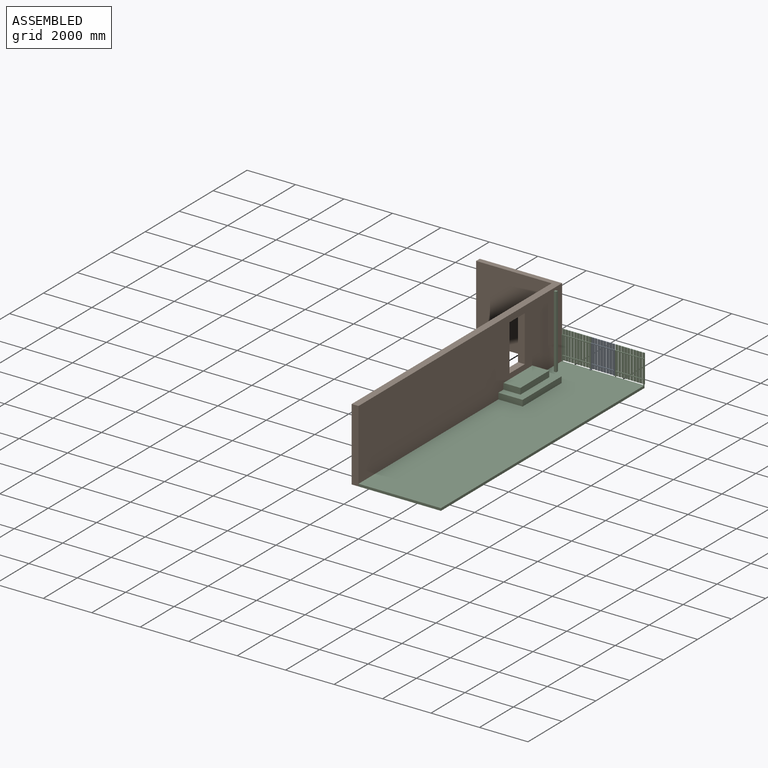
[diagram: assembled view]
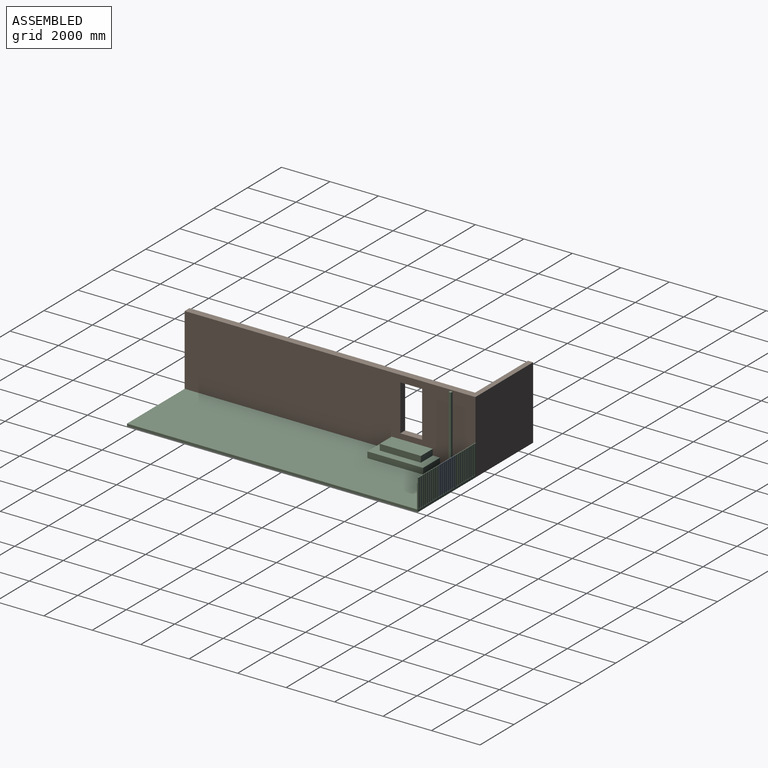
[diagram: assembled view, second angle]
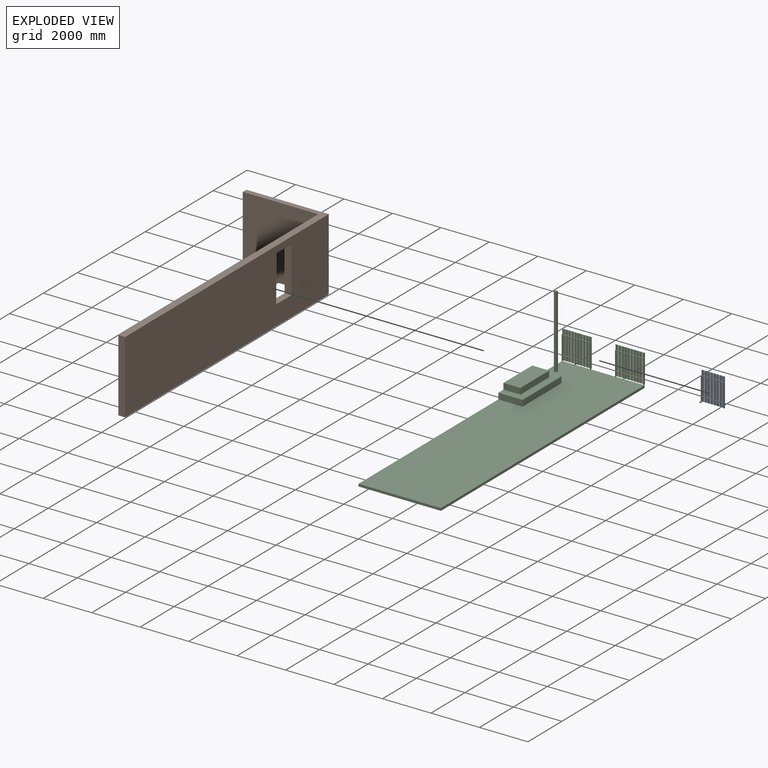
[diagram: exploded view]
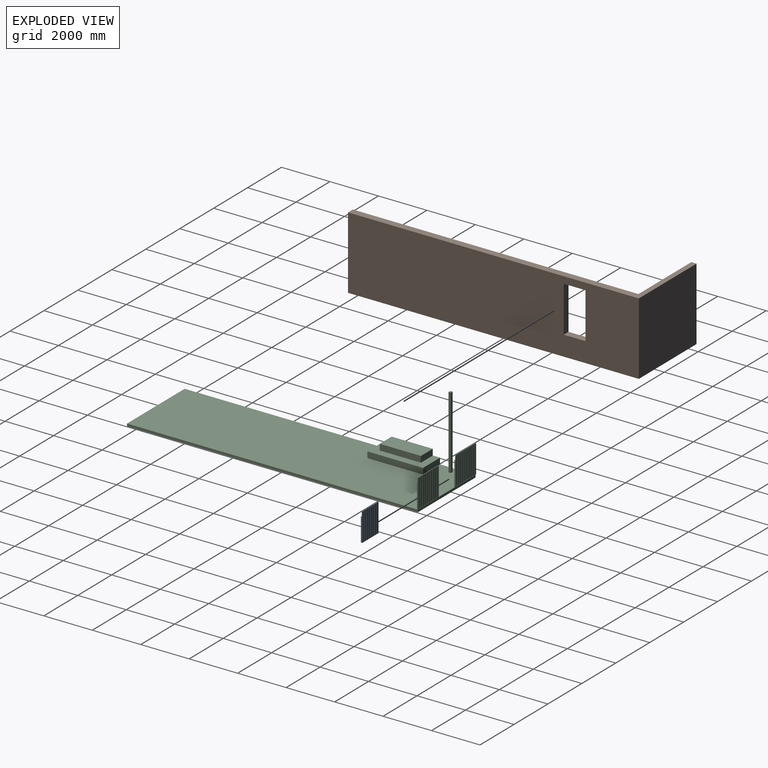
[diagram: exploded view, second angle]
ASSEMBLY  parts=3 mates=2
PART A: 99 faces, bbox 1015x98x1200 mm
  f0: plane 970x970mm, normal (0,-1,0), area 112800mm2, adj f16,f17,f19,f20,f22,f23,f24,f25
  f1: plane 30x27mm, normal (0,1,0), area 810mm2, adj f20,f25,f89,f94
  f2: plane 1000x30mm, normal (0,1,0), area 11570mm2, adj f17,f19,f20,f21,f95,f96
  f3: plane 30x27mm, normal (0,1,0), area 810mm2, adj f26,f27,f89,f94
  f4: plane 30x27mm, normal (0,1,0), area 810mm2, adj f20,f25,f78,f87
  f5: plane 30x27mm, normal (0,1,0), area 810mm2, adj f26,f27,f78,f87
  f6: plane 30x27mm, normal (0,1,0), area 810mm2, adj f20,f25,f73,f80
  f7: plane 30x27mm, normal (0,1,0), area 810mm2, adj f26,f27,f73,f80
  f8: plane 30x27mm, normal (0,1,0), area 810mm2, adj f20,f25,f62,f71
  f9: plane 30x27mm, normal (0,1,0), area 810mm2, adj f26,f27,f62,f71
  f10: plane 30x27mm, normal (0,1,0), area 810mm2, adj f20,f25,f57,f64
  f11: plane 30x27mm, normal (0,1,0), area 810mm2, adj f26,f27,f57,f64
  f12: plane 30x27mm, normal (0,1,0), area 810mm2, adj f20,f25,f46,f55
  f13: plane 30x27mm, normal (0,1,0), area 810mm2, adj f26,f27,f46,f55
  f14: plane 30x27mm, normal (0,1,0), area 810mm2, adj f20,f25,f38,f48
  f15: plane 30x27mm, normal (0,1,0), area 810mm2, adj f26,f27,f38,f48
  f16: plane 740x30mm, normal (1,0,0), area 22200mm2, adj f0,f25,f27,f92
  f17: plane 200x70mm, normal (1,0,0), area 7200mm2, adj f0,f2,f21,f26,f28,f29,f93
  f18: plane 970x10mm, normal (0,1,0), area 9700mm2, adj f20,f24,f37,f40
  f19: plane 1000x40mm, normal (-1,0,0), area 30300mm2, adj f0,f2,f20,f21,f28,f34
  f20: plane 970x30mm, normal (0,0,1), area 29100mm2, adj f0,f1,f2,f4,f6,f8,f10,f12
  f21: plane 75x70mm, normal (0,0,-1), area 3328.5mm2, adj f2,f17,f19,f29,f30,f31,f32,f33
  f22: plane 170x30mm, normal (-1,0,0), area 5100mm2, adj f0,f26,f37,f42
  f23: plane 740x30mm, normal (-1,0,0), area 22200mm2, adj f0,f25,f27,f36
  f24: plane 970x30mm, normal (1,0,0), area 29100mm2, adj f0,f18,f20,f37
  f25: plane 910x30mm, normal (0,0,-1), area 27300mm2, adj f0,f1,f4,f6,f8,f10,f12,f14
  f26: plane 910x30mm, normal (0,0,-1), area 27300mm2, adj f0,f3,f5,f7,f9,f11,f13,f15
  f27: plane 910x30mm, normal (0,0,1), area 27300mm2, adj f0,f3,f5,f7,f9,f11,f13,f15
  f28: plane 75x40mm, normal (0,0,1), area 2428.5mm2, adj f0,f17,f19,f29,f30,f31,f32,f33
  f29: plane 65x30mm, normal (0,-1,0), area 1950mm2, adj f17,f21,f28,f30
  f30: cylinder r=10mm len=30mm, axis (0,0,-1), area 471.2mm2, adj f21,f28,f29,f31
  f31: plane 30x10mm, normal (-1,0,0), area 300mm2, adj f21,f28,f30,f32
  f32: cylinder r=10mm len=30mm, axis (0,0,-1), area 471.2mm2, adj f21,f28,f31,f34
  f33: cylinder r=5mm len=30mm, axis (0,0,-1), area 942.5mm2, adj f21,f28
  f34: plane 35x30mm, normal (0,1,0), area 1050mm2, adj f19,f21,f28,f32
  f35: plane 200x95mm, normal (0,-1,0), area 19000mm2, adj f20,f38,f39,f40
  f36: plane 740x75mm, normal (0,-1,0), area 55500mm2, adj f23,f25,f27,f38
  f37: plane 105x58mm, normal (0,0,-1), area 3560mm2, adj f0,f18,f22,f24,f38,f40,f41,f42
  f38: plane 1170x28mm, normal (-1,0,0), area 32760mm2, adj f14,f15,f35,f36,f37,f39,f41,f42
  f39: plane 95x28mm, normal (0,0,1), area 2660mm2, adj f35,f38,f40,f41
  f40: plane 1170x28mm, normal (1,0,0), area 32760mm2, adj f18,f35,f37,f39,f41
  f41: plane 1170x95mm, normal (0,1,0), area 111150mm2, adj f37,f38,f39,f40
  f42: plane 170x75mm, normal (0,-1,0), area 12750mm2, adj f22,f26,f37,f38
  f43: plane 200x95mm, normal (0,-1,0), area 19000mm2, adj f20,f46,f47,f48
  f44: plane 740x95mm, normal (0,-1,0), area 70300mm2, adj f25,f27,f46,f48
  f45: plane 170x95mm, normal (0,-1,0), area 16150mm2, adj f26,f46,f48,f49
  f46: plane 1170x28mm, normal (-1,0,0), area 32760mm2, adj f12,f13,f43,f44,f45,f47,f49,f50
  f47: plane 95x28mm, normal (0,0,1), area 2660mm2, adj f43,f46,f48,f50
  f48: plane 1170x28mm, normal (1,0,0), area 32760mm2, adj f14,f15,f43,f44,f45,f47,f49,f50
  f49: plane 95x28mm, normal (0,0,-1), area 2660mm2, adj f45,f46,f48,f50
  f50: plane 1170x95mm, normal (0,1,0), area 111150mm2, adj f46,f47,f48,f49
  f51: plane 200x95mm, normal (0,-1,0), area 19000mm2, adj f20,f54,f55,f57
  f52: plane 740x95mm, normal (0,-1,0), area 70300mm2, adj f25,f27,f55,f57
  f53: plane 170x95mm, normal (0,-1,0), area 16150mm2, adj f26,f55,f56,f57
  f54: plane 95x28mm, normal (0,0,1), area 2660mm2, adj f51,f55,f57,f58
  f55: plane 1170x28mm, normal (1,0,0), area 32760mm2, adj f12,f13,f51,f52,f53,f54,f56,f58
  f56: plane 95x28mm, normal (0,0,-1), area 2660mm2, adj f53,f55,f57,f58
  f57: plane 1170x28mm, normal (-1,0,0), area 32760mm2, adj f10,f11,f51,f52,f53,f54,f56,f58
  f58: plane 1170x95mm, normal (0,1,0), area 111150mm2, adj f54,f55,f56,f57
  f59: plane 200x95mm, normal (0,-1,0), area 19000mm2, adj f20,f62,f63,f64
  f60: plane 740x95mm, normal (0,-1,0), area 70300mm2, adj f25,f27,f62,f64
  f61: plane 170x95mm, normal (0,-1,0), area 16150mm2, adj f26,f62,f64,f65
  f62: plane 1170x28mm, normal (-1,0,0), area 32760mm2, adj f8,f9,f59,f60,f61,f63,f65,f66
  f63: plane 95x28mm, normal (0,0,1), area 2660mm2, adj f59,f62,f64,f66
  f64: plane 1170x28mm, normal (1,0,0), area 32760mm2, adj f10,f11,f59,f60,f61,f63,f65,f66
  f65: plane 95x28mm, normal (0,0,-1), area 2660mm2, adj f61,f62,f64,f66
  f66: plane 1170x95mm, normal (0,1,0), area 111150mm2, adj f62,f63,f64,f65
  f67: plane 200x95mm, normal (0,-1,0), area 19000mm2, adj f20,f70,f71,f73
  f68: plane 740x95mm, normal (0,-1,0), area 70300mm2, adj f25,f27,f71,f73
  f69: plane 170x95mm, normal (0,-1,0), area 16150mm2, adj f26,f71,f72,f73
  f70: plane 95x28mm, normal (0,0,1), area 2660mm2, adj f67,f71,f73,f74
  f71: plane 1170x28mm, normal (1,0,0), area 32760mm2, adj f8,f9,f67,f68,f69,f70,f72,f74
  f72: plane 95x28mm, normal (0,0,-1), area 2660mm2, adj f69,f71,f73,f74
  f73: plane 1170x28mm, normal (-1,0,0), area 32760mm2, adj f6,f7,f67,f68,f69,f70,f72,f74
  f74: plane 1170x95mm, normal (0,1,0), area 111150mm2, adj f70,f71,f72,f73
  f75: plane 200x95mm, normal (0,-1,0), area 19000mm2, adj f20,f78,f79,f80
  f76: plane 740x95mm, normal (0,-1,0), area 70300mm2, adj f25,f27,f78,f80
  f77: plane 170x95mm, normal (0,-1,0), area 16150mm2, adj f26,f78,f80,f81
  f78: plane 1170x28mm, normal (-1,0,0), area 32760mm2, adj f4,f5,f75,f76,f77,f79,f81,f82
  f79: plane 95x28mm, normal (0,0,1), area 2660mm2, adj f75,f78,f80,f82
  f80: plane 1170x28mm, normal (1,0,0), area 32760mm2, adj f6,f7,f75,f76,f77,f79,f81,f82
  f81: plane 95x28mm, normal (0,0,-1), area 2660mm2, adj f77,f78,f80,f82
  f82: plane 1170x95mm, normal (0,1,0), area 111150mm2, adj f78,f79,f80,f81
  f83: plane 200x95mm, normal (0,-1,0), area 19000mm2, adj f20,f86,f87,f89
  f84: plane 740x95mm, normal (0,-1,0), area 70300mm2, adj f25,f27,f87,f89
  f85: plane 170x95mm, normal (0,-1,0), area 16150mm2, adj f26,f87,f88,f89
  f86: plane 95x28mm, normal (0,0,1), area 2660mm2, adj f83,f87,f89,f90
  f87: plane 1170x28mm, normal (1,0,0), area 32760mm2, adj f4,f5,f83,f84,f85,f86,f88,f90
  f88: plane 95x28mm, normal (0,0,-1), area 2660mm2, adj f85,f87,f89,f90
  f89: plane 1170x28mm, normal (-1,0,0), area 32760mm2, adj f1,f3,f83,f84,f85,f86,f88,f90
  f90: plane 1170x95mm, normal (0,1,0), area 111150mm2, adj f86,f87,f88,f89
  f91: plane 200x95mm, normal (0,-1,0), area 19000mm2, adj f20,f94,f96,f97
  f92: plane 740x76mm, normal (0,-1,0), area 56240mm2, adj f16,f25,f27,f94
  f93: plane 170x76mm, normal (0,-1,0), area 12920mm2, adj f17,f26,f94,f95
  f94: plane 1170x28mm, normal (1,0,0), area 32760mm2, adj f1,f3,f91,f92,f93,f95,f97,f98
  f95: plane 95x28mm, normal (0,0,-1), area 2660mm2, adj f2,f93,f94,f96,f98
  f96: plane 1170x28mm, normal (-1,0,0), area 32760mm2, adj f2,f91,f95,f97,f98
  f97: plane 95x28mm, normal (0,0,1), area 2660mm2, adj f91,f94,f96,f98
  f98: plane 1170x95mm, normal (0,1,0), area 111150mm2, adj f94,f95,f96,f97
PART B: 12 faces, bbox 12000x3400x3000 mm
  f0: plane 12000x3000mm, normal (0,-1,0), area 34290000mm2, adj f2,f3,f6,f7,f8,f9,f10,f11
  f1: plane 11786.88x3000mm, normal (0,1,0), area 33650647.6mm2, adj f2,f5,f6,f7,f8,f9,f10,f11
  f2: plane 3000x283.15mm, normal (-1,0,0), area 849455mm2, adj f0,f1,f6,f7
  f3: plane 3400x3000mm, normal (1,0,0), area 10200000mm2, adj f0,f4,f6,f7
  f4: plane 3000x213.12mm, normal (0,1,0), area 639352.4mm2, adj f3,f5,f6,f7
  f5: plane 3116.85x3000mm, normal (-1,0,0), area 9350545mm2, adj f1,f4,f6,f7
  f6: plane 12000x3400mm, normal (0,0,1), area 4062074.7mm2, adj f0,f1,f2,f3,f4,f5
  f7: plane 12000x3400mm, normal (0,0,-1), area 4062074.7mm2, adj f0,f1,f2,f3,f4,f5
  f8: plane 900x283.15mm, normal (0,0,-1), area 254836.5mm2, adj f0,f1,f9,f11
  f9: plane 1900x283.15mm, normal (1,0,0), area 537988.1mm2, adj f0,f1,f8,f10
  f10: plane 900x283.15mm, normal (0,0,1), area 254836.5mm2, adj f0,f1,f9,f11
  f11: plane 1900x283.15mm, normal (-1,0,0), area 537988.1mm2, adj f0,f1,f8,f10
PART C: 235 faces, bbox 3400x12028x3100 mm
  f0: plane 30x27.5mm, normal (0,1,0), area 825mm2, adj f54,f60,f221,f230
  f1: plane 30x27.5mm, normal (0,1,0), area 825mm2, adj f61,f62,f221,f230
  f2: plane 30x27.5mm, normal (0,1,0), area 825mm2, adj f54,f60,f213,f223
  f3: plane 30x27.5mm, normal (0,1,0), area 825mm2, adj f61,f62,f213,f223
  f4: plane 30x27.5mm, normal (0,1,0), area 825mm2, adj f54,f60,f205,f215
  f5: plane 30x27.5mm, normal (0,1,0), area 825mm2, adj f61,f62,f205,f215
  f6: plane 30x27.5mm, normal (0,1,0), area 825mm2, adj f54,f60,f197,f207
  f7: plane 30x27.5mm, normal (0,1,0), area 825mm2, adj f61,f62,f197,f207
  f8: plane 30x27.5mm, normal (0,1,0), area 825mm2, adj f54,f60,f189,f199
  f9: plane 30x27.5mm, normal (0,1,0), area 825mm2, adj f61,f62,f189,f199
  f10: plane 30x27.5mm, normal (0,1,0), area 825mm2, adj f54,f60,f181,f191
  f11: plane 30x27.5mm, normal (0,1,0), area 825mm2, adj f61,f62,f181,f191
  f12: plane 30x27.5mm, normal (0,1,0), area 825mm2, adj f54,f60,f173,f183
  f13: plane 30x27.5mm, normal (0,1,0), area 825mm2, adj f61,f62,f173,f183
  f14: plane 30x27.5mm, normal (0,1,0), area 825mm2, adj f54,f60,f165,f175
  f15: plane 30x27.5mm, normal (0,1,0), area 825mm2, adj f61,f62,f165,f175
  f16: plane 30x27.5mm, normal (0,1,0), area 825mm2, adj f54,f60,f159,f167
  f17: plane 30x27.5mm, normal (0,1,0), area 825mm2, adj f61,f62,f159,f167
  f18: plane 3400x1100mm, normal (0,1,0), area 348450mm2, adj f39,f43,f44,f45,f46,f47,f48,f51
  f19: plane 30x27.5mm, normal (0,1,0), area 825mm2, adj f51,f59,f142,f151
  f20: plane 30x27.5mm, normal (0,1,0), area 825mm2, adj f57,f58,f142,f151
  f21: plane 30x27.5mm, normal (0,1,0), area 825mm2, adj f51,f59,f134,f144
  f22: plane 30x27.5mm, normal (0,1,0), area 825mm2, adj f57,f58,f134,f144
  f23: plane 30x27.5mm, normal (0,1,0), area 825mm2, adj f51,f59,f126,f136
  f24: plane 30x27.5mm, normal (0,1,0), area 825mm2, adj f57,f58,f126,f136
  f25: plane 30x27.5mm, normal (0,1,0), area 825mm2, adj f51,f59,f118,f128
  f26: plane 30x27.5mm, normal (0,1,0), area 825mm2, adj f57,f58,f118,f128
  f27: plane 30x27.5mm, normal (0,1,0), area 825mm2, adj f51,f59,f110,f120
  f28: plane 30x27.5mm, normal (0,1,0), area 825mm2, adj f57,f58,f110,f120
  f29: plane 30x27.5mm, normal (0,1,0), area 825mm2, adj f51,f59,f102,f112
  f30: plane 30x27.5mm, normal (0,1,0), area 825mm2, adj f57,f58,f102,f112
  f31: plane 30x27.5mm, normal (0,1,0), area 825mm2, adj f51,f59,f94,f104
  f32: plane 30x27.5mm, normal (0,1,0), area 825mm2, adj f57,f58,f94,f104
  f33: plane 30x27.5mm, normal (0,1,0), area 825mm2, adj f51,f59,f86,f96
  f34: plane 30x27.5mm, normal (0,1,0), area 825mm2, adj f57,f58,f86,f96
  f35: plane 30x27.5mm, normal (0,1,0), area 825mm2, adj f51,f59,f80,f88
  f36: plane 30x27.5mm, normal (0,1,0), area 825mm2, adj f57,f58,f80,f88
  f37: plane 2300x1000mm, normal (0,0,1), area 1110000mm2, adj f45,f68,f69,f70,f73,f74,f75
  f38: plane 740x30mm, normal (1,0,0), area 22200mm2, adj f53,f60,f62,f227
  f39: plane 200x30mm, normal (-1,0,0), area 6000mm2, adj f18,f48,f53,f61,f156
  f40: plane 740x30mm, normal (-1,0,0), area 22200mm2, adj f53,f60,f62,f157
  f41: plane 740x30mm, normal (-1,0,0), area 22200mm2, adj f50,f57,f59,f83
  f42: plane 740x30mm, normal (1,0,0), area 22200mm2, adj f50,f57,f59,f149
  f43: plane 200x30mm, normal (-1,0,0), area 6000mm2, adj f18,f48,f50,f58,f78
  f44: plane 200x30mm, normal (1,0,0), area 6000mm2, adj f18,f48,f50,f58,f155
  f45: plane 12000x1100mm, normal (-1,0,0), area 2230000mm2, adj f18,f37,f46,f48,f49,f53,f54,f68
  f46: plane 12000x3400mm, normal (0,0,-1), area 40800000mm2, adj f18,f45,f47,f49
  f47: plane 12028x1300mm, normal (1,0,0), area 1262760mm2, adj f18,f46,f48,f49,f50,f51,f77,f79
  f48: plane 12000x3400mm, normal (0,0,1), area 38486321.5mm2, adj f18,f39,f43,f44,f45,f47,f49,f50
  f49: plane 3400x100mm, normal (0,-1,0), area 340000mm2, adj f45,f46,f47,f48
  f50: plane 1200x1000mm, normal (0,-1,0), area 128400mm2, adj f41,f42,f43,f44,f47,f48,f51,f56
  f51: plane 1200x30mm, normal (0,0,1), area 36000mm2, adj f18,f19,f21,f23,f25,f27,f29,f31
  f52: plane 200x30mm, normal (1,0,0), area 6000mm2, adj f18,f48,f53,f61,f228
  f53: plane 1200x1000mm, normal (0,-1,0), area 128400mm2, adj f38,f39,f40,f45,f48,f52,f54,f55
  f54: plane 1200x30mm, normal (0,0,1), area 36000mm2, adj f0,f2,f4,f6,f8,f10,f12,f14
  f55: plane 1200x58mm, normal (1,0,0), area 62760mm2, adj f18,f48,f53,f54,f158,f160,f161,f162
  f56: plane 1000x30mm, normal (-1,0,0), area 30000mm2, adj f18,f48,f50,f51
  f57: plane 1140x30mm, normal (0,0,1), area 34200mm2, adj f20,f22,f24,f26,f28,f30,f32,f34
  f58: plane 1140x30mm, normal (0,0,-1), area 34200mm2, adj f20,f22,f24,f26,f28,f30,f32,f34
  f59: plane 1140x30mm, normal (0,0,-1), area 34200mm2, adj f19,f21,f23,f25,f27,f29,f31,f33
  f60: plane 1140x30mm, normal (0,0,-1), area 34200mm2, adj f0,f2,f4,f6,f8,f10,f12,f14
  f61: plane 1140x30mm, normal (0,0,-1), area 34200mm2, adj f1,f3,f5,f7,f9,f11,f13,f15
  f62: plane 1140x30mm, normal (0,0,1), area 34200mm2, adj f1,f3,f5,f7,f9,f11,f13,f15
  f63: plane 3000x100mm, normal (0,1,0), area 300000mm2, adj f48,f64,f66,f67
  f64: plane 3000x100mm, normal (-1,0,0), area 300000mm2, adj f48,f63,f65,f67
  f65: plane 3000x100mm, normal (0,-1,0), area 300000mm2, adj f48,f64,f66,f67
  f66: plane 3000x100mm, normal (1,0,0), area 300000mm2, adj f48,f63,f65,f67
  f67: plane 100x100mm, normal (0,0,1), area 10000mm2, adj f63,f64,f65,f66
  f68: plane 1000x250mm, normal (0,1,0), area 250000mm2, adj f37,f45,f48,f70
  f69: plane 1000x250mm, normal (0,-1,0), area 250000mm2, adj f37,f45,f48,f70
  f70: plane 2300x250mm, normal (1,0,0), area 575000mm2, adj f37,f48,f68,f69
  f71: cylinder r=5mm len=30mm, axis (0,0,-1), area 942.5mm2, adj f48,f72
  f72: plane 10x10mm, normal (0,0,1), area 78.5mm2, adj f71
  f73: plane 700x250mm, normal (0,1,0), area 175000mm2, adj f37,f45,f75,f76
  f74: plane 700x250mm, normal (0,-1,0), area 175000mm2, adj f37,f45,f75,f76
  f75: plane 1700x250mm, normal (1,0,0), area 425000mm2, adj f37,f73,f74,f76
  f76: plane 1700x700mm, normal (0,0,1), area 1190000mm2, adj f45,f73,f74,f75
  f77: plane 200x95mm, normal (0,-1,0), area 19000mm2, adj f47,f51,f80,f81
  f78: plane 170x65mm, normal (0,-1,0), area 11050mm2, adj f43,f58,f79,f80
  f79: plane 95x28mm, normal (0,0,-1), area 2660mm2, adj f18,f47,f78,f80,f82
  f80: plane 1170x28mm, normal (-1,0,0), area 32760mm2, adj f35,f36,f77,f78,f79,f81,f82,f83
  f81: plane 95x28mm, normal (0,0,1), area 2660mm2, adj f47,f77,f80,f82
  f82: plane 1170x95mm, normal (0,1,0), area 111150mm2, adj f47,f79,f80,f81
  f83: plane 740x65mm, normal (0,-1,0), area 48100mm2, adj f41,f57,f59,f80
  f84: plane 200x95mm, normal (0,-1,0), area 19000mm2, adj f51,f86,f87,f88
  f85: plane 740x95mm, normal (0,-1,0), area 70300mm2, adj f57,f59,f86,f88
  f86: plane 1170x28mm, normal (-1,0,0), area 32760mm2, adj f33,f34,f84,f85,f87,f89,f90,f91
  f87: plane 95x28mm, normal (0,0,1), area 2660mm2, adj f84,f86,f88,f90
  f88: plane 1170x28mm, normal (1,0,0), area 32760mm2, adj f35,f36,f84,f85,f87,f89,f90,f91
  f89: plane 95x28mm, normal (0,0,-1), area 2660mm2, adj f86,f88,f90,f91
  f90: plane 1170x95mm, normal (0,1,0), area 111150mm2, adj f86,f87,f88,f89
  f91: plane 170x95mm, normal (0,-1,0), area 16150mm2, adj f58,f86,f88,f89
  f92: plane 200x95mm, normal (0,-1,0), area 19000mm2, adj f51,f94,f95,f96
  f93: plane 740x95mm, normal (0,-1,0), area 70300mm2, adj f57,f59,f94,f96
  f94: plane 1170x28mm, normal (-1,0,0), area 32760mm2, adj f31,f32,f92,f93,f95,f97,f98,f99
  f95: plane 95x28mm, normal (0,0,1), area 2660mm2, adj f92,f94,f96,f98
  f96: plane 1170x28mm, normal (1,0,0), area 32760mm2, adj f33,f34,f92,f93,f95,f97,f98,f99
  f97: plane 95x28mm, normal (0,0,-1), area 2660mm2, adj f94,f96,f98,f99
  f98: plane 1170x95mm, normal (0,1,0), area 111150mm2, adj f94,f95,f96,f97
  f99: plane 170x95mm, normal (0,-1,0), area 16150mm2, adj f58,f94,f96,f97
  f100: plane 200x95mm, normal (0,-1,0), area 19000mm2, adj f51,f102,f103,f104
  f101: plane 740x95mm, normal (0,-1,0), area 70300mm2, adj f57,f59,f102,f104
  f102: plane 1170x28mm, normal (-1,0,0), area 32760mm2, adj f29,f30,f100,f101,f103,f105,f106,f107
  f103: plane 95x28mm, normal (0,0,1), area 2660mm2, adj f100,f102,f104,f106
  f104: plane 1170x28mm, normal (1,0,0), area 32760mm2, adj f31,f32,f100,f101,f103,f105,f106,f107
  f105: plane 95x28mm, normal (0,0,-1), area 2660mm2, adj f102,f104,f106,f107
  f106: plane 1170x95mm, normal (0,1,0), area 111150mm2, adj f102,f103,f104,f105
  f107: plane 170x95mm, normal (0,-1,0), area 16150mm2, adj f58,f102,f104,f105
  f108: plane 200x95mm, normal (0,-1,0), area 19000mm2, adj f51,f110,f111,f112
  f109: plane 740x95mm, normal (0,-1,0), area 70300mm2, adj f57,f59,f110,f112
  f110: plane 1170x28mm, normal (-1,0,0), area 32760mm2, adj f27,f28,f108,f109,f111,f113,f114,f115
  f111: plane 95x28mm, normal (0,0,1), area 2660mm2, adj f108,f110,f112,f114
  f112: plane 1170x28mm, normal (1,0,0), area 32760mm2, adj f29,f30,f108,f109,f111,f113,f114,f115
  f113: plane 95x28mm, normal (0,0,-1), area 2660mm2, adj f110,f112,f114,f115
  f114: plane 1170x95mm, normal (0,1,0), area 111150mm2, adj f110,f111,f112,f113
  f115: plane 170x95mm, normal (0,-1,0), area 16150mm2, adj f58,f110,f112,f113
  f116: plane 200x95mm, normal (0,-1,0), area 19000mm2, adj f51,f118,f119,f120
  f117: plane 740x95mm, normal (0,-1,0), area 70300mm2, adj f57,f59,f118,f120
  f118: plane 1170x28mm, normal (-1,0,0), area 32760mm2, adj f25,f26,f116,f117,f119,f121,f122,f123
  f119: plane 95x28mm, normal (0,0,1), area 2660mm2, adj f116,f118,f120,f122
  f120: plane 1170x28mm, normal (1,0,0), area 32760mm2, adj f27,f28,f116,f117,f119,f121,f122,f123
  f121: plane 95x28mm, normal (0,0,-1), area 2660mm2, adj f118,f120,f122,f123
  f122: plane 1170x95mm, normal (0,1,0), area 111150mm2, adj f118,f119,f120,f121
  f123: plane 170x95mm, normal (0,-1,0), area 16150mm2, adj f58,f118,f120,f121
  f124: plane 200x95mm, normal (0,-1,0), area 19000mm2, adj f51,f126,f127,f128
  f125: plane 740x95mm, normal (0,-1,0), area 70300mm2, adj f57,f59,f126,f128
  f126: plane 1170x28mm, normal (-1,0,0), area 32760mm2, adj f23,f24,f124,f125,f127,f129,f130,f131
  f127: plane 95x28mm, normal (0,0,1), area 2660mm2, adj f124,f126,f128,f130
  f128: plane 1170x28mm, normal (1,0,0), area 32760mm2, adj f25,f26,f124,f125,f127,f129,f130,f131
  f129: plane 95x28mm, normal (0,0,-1), area 2660mm2, adj f126,f128,f130,f131
  f130: plane 1170x95mm, normal (0,1,0), area 111150mm2, adj f126,f127,f128,f129
  f131: plane 170x95mm, normal (0,-1,0), area 16150mm2, adj f58,f126,f128,f129
  f132: plane 200x95mm, normal (0,-1,0), area 19000mm2, adj f51,f134,f135,f136
  f133: plane 740x95mm, normal (0,-1,0), area 70300mm2, adj f57,f59,f134,f136
  f134: plane 1170x28mm, normal (-1,0,0), area 32760mm2, adj f21,f22,f132,f133,f135,f137,f138,f139
  f135: plane 95x28mm, normal (0,0,1), area 2660mm2, adj f132,f134,f136,f138
  f136: plane 1170x28mm, normal (1,0,0), area 32760mm2, adj f23,f24,f132,f133,f135,f137,f138,f139
  f137: plane 95x28mm, normal (0,0,-1), area 2660mm2, adj f134,f136,f138,f139
  f138: plane 1170x95mm, normal (0,1,0), area 111150mm2, adj f134,f135,f136,f137
  f139: plane 170x95mm, normal (0,-1,0), area 16150mm2, adj f58,f134,f136,f137
  f140: plane 200x95mm, normal (0,-1,0), area 19000mm2, adj f51,f142,f143,f144
  f141: plane 740x95mm, normal (0,-1,0), area 70300mm2, adj f57,f59,f142,f144
  f142: plane 1170x28mm, normal (-1,0,0), area 32760mm2, adj f19,f20,f140,f141,f143,f145,f146,f147
  f143: plane 95x28mm, normal (0,0,1), area 2660mm2, adj f140,f142,f144,f146
  f144: plane 1170x28mm, normal (1,0,0), area 32760mm2, adj f21,f22,f140,f141,f143,f145,f146,f147
  f145: plane 95x28mm, normal (0,0,-1), area 2660mm2, adj f142,f144,f146,f147
  f146: plane 1170x95mm, normal (0,1,0), area 111150mm2, adj f142,f143,f144,f145
  f147: plane 170x95mm, normal (0,-1,0), area 16150mm2, adj f58,f142,f144,f145
  f148: plane 200x95mm, normal (0,-1,0), area 19000mm2, adj f51,f150,f151,f153
  f149: plane 740x67.5mm, normal (0,-1,0), area 49950mm2, adj f42,f57,f59,f151
  f150: plane 95x28mm, normal (0,0,1), area 2660mm2, adj f148,f151,f153,f154
  f151: plane 1170x28mm, normal (1,0,0), area 32760mm2, adj f19,f20,f148,f149,f150,f152,f154,f155
  f152: plane 95x28mm, normal (0,0,-1), area 2660mm2, adj f18,f151,f153,f154,f155
  f153: plane 1170x28mm, normal (-1,0,0), area 32760mm2, adj f18,f148,f150,f152,f154
  f154: plane 1170x95mm, normal (0,1,0), area 111150mm2, adj f150,f151,f152,f153
  f155: plane 170x67.5mm, normal (0,-1,0), area 11475mm2, adj f44,f58,f151,f152
  f156: plane 170x65mm, normal (0,-1,0), area 11050mm2, adj f39,f61,f158,f159
  f157: plane 740x65mm, normal (0,-1,0), area 48100mm2, adj f40,f60,f62,f159
  f158: plane 95x28mm, normal (0,0,-1), area 2660mm2, adj f18,f55,f156,f159,f161
  f159: plane 1170x28mm, normal (-1,0,0), area 32760mm2, adj f16,f17,f156,f157,f158,f160,f161,f162
  f160: plane 95x28mm, normal (0,0,1), area 2660mm2, adj f55,f159,f161,f162
  f161: plane 1170x95mm, normal (0,1,0), area 111150mm2, adj f55,f158,f159,f160
  f162: plane 200x95mm, normal (0,-1,0), area 19000mm2, adj f54,f55,f159,f160
  f163: plane 740x95mm, normal (0,-1,0), area 70300mm2, adj f60,f62,f165,f167
  f164: plane 170x95mm, normal (0,-1,0), area 16150mm2, adj f61,f165,f167,f168
  f165: plane 1170x28mm, normal (-1,0,0), area 32760mm2, adj f14,f15,f163,f164,f166,f168,f169,f170
  f166: plane 95x28mm, normal (0,0,1), area 2660mm2, adj f165,f167,f169,f170
  f167: plane 1170x28mm, normal (1,0,0), area 32760mm2, adj f16,f17,f163,f164,f166,f168,f169,f170
  f168: plane 95x28mm, normal (0,0,-1), area 2660mm2, adj f164,f165,f167,f169
  f169: plane 1170x95mm, normal (0,1,0), area 111150mm2, adj f165,f166,f167,f168
  f170: plane 200x95mm, normal (0,-1,0), area 19000mm2, adj f54,f165,f166,f167
  f171: plane 740x95mm, normal (0,-1,0), area 70300mm2, adj f60,f62,f173,f175
  f172: plane 170x95mm, normal (0,-1,0), area 16150mm2, adj f61,f173,f175,f176
  f173: plane 1170x28mm, normal (-1,0,0), area 32760mm2, adj f12,f13,f171,f172,f174,f176,f177,f178
  f174: plane 95x28mm, normal (0,0,1), area 2660mm2, adj f173,f175,f177,f178
  f175: plane 1170x28mm, normal (1,0,0), area 32760mm2, adj f14,f15,f171,f172,f174,f176,f177,f178
  f176: plane 95x28mm, normal (0,0,-1), area 2660mm2, adj f172,f173,f175,f177
  f177: plane 1170x95mm, normal (0,1,0), area 111150mm2, adj f173,f174,f175,f176
  f178: plane 200x95mm, normal (0,-1,0), area 19000mm2, adj f54,f173,f174,f175
  f179: plane 740x95mm, normal (0,-1,0), area 70300mm2, adj f60,f62,f181,f183
  f180: plane 170x95mm, normal (0,-1,0), area 16150mm2, adj f61,f181,f183,f184
  f181: plane 1170x28mm, normal (-1,0,0), area 32760mm2, adj f10,f11,f179,f180,f182,f184,f185,f186
  f182: plane 95x28mm, normal (0,0,1), area 2660mm2, adj f181,f183,f185,f186
  f183: plane 1170x28mm, normal (1,0,0), area 32760mm2, adj f12,f13,f179,f180,f182,f184,f185,f186
  f184: plane 95x28mm, normal (0,0,-1), area 2660mm2, adj f180,f181,f183,f185
  f185: plane 1170x95mm, normal (0,1,0), area 111150mm2, adj f181,f182,f183,f184
  f186: plane 200x95mm, normal (0,-1,0), area 19000mm2, adj f54,f181,f182,f183
  f187: plane 740x95mm, normal (0,-1,0), area 70300mm2, adj f60,f62,f189,f191
  f188: plane 170x95mm, normal (0,-1,0), area 16150mm2, adj f61,f189,f191,f192
  f189: plane 1170x28mm, normal (-1,0,0), area 32760mm2, adj f8,f9,f187,f188,f190,f192,f193,f194
  f190: plane 95x28mm, normal (0,0,1), area 2660mm2, adj f189,f191,f193,f194
  f191: plane 1170x28mm, normal (1,0,0), area 32760mm2, adj f10,f11,f187,f188,f190,f192,f193,f194
  f192: plane 95x28mm, normal (0,0,-1), area 2660mm2, adj f188,f189,f191,f193
  f193: plane 1170x95mm, normal (0,1,0), area 111150mm2, adj f189,f190,f191,f192
  f194: plane 200x95mm, normal (0,-1,0), area 19000mm2, adj f54,f189,f190,f191
  f195: plane 740x95mm, normal (0,-1,0), area 70300mm2, adj f60,f62,f197,f199
  f196: plane 170x95mm, normal (0,-1,0), area 16150mm2, adj f61,f197,f199,f200
  f197: plane 1170x28mm, normal (-1,0,0), area 32760mm2, adj f6,f7,f195,f196,f198,f200,f201,f202
  f198: plane 95x28mm, normal (0,0,1), area 2660mm2, adj f197,f199,f201,f202
  f199: plane 1170x28mm, normal (1,0,0), area 32760mm2, adj f8,f9,f195,f196,f198,f200,f201,f202
  f200: plane 95x28mm, normal (0,0,-1), area 2660mm2, adj f196,f197,f199,f201
  f201: plane 1170x95mm, normal (0,1,0), area 111150mm2, adj f197,f198,f199,f200
  f202: plane 200x95mm, normal (0,-1,0), area 19000mm2, adj f54,f197,f198,f199
  f203: plane 740x95mm, normal (0,-1,0), area 70300mm2, adj f60,f62,f205,f207
  f204: plane 170x95mm, normal (0,-1,0), area 16150mm2, adj f61,f205,f207,f208
  f205: plane 1170x28mm, normal (-1,0,0), area 32760mm2, adj f4,f5,f203,f204,f206,f208,f209,f210
  f206: plane 95x28mm, normal (0,0,1), area 2660mm2, adj f205,f207,f209,f210
  f207: plane 1170x28mm, normal (1,0,0), area 32760mm2, adj f6,f7,f203,f204,f206,f208,f209,f210
  f208: plane 95x28mm, normal (0,0,-1), area 2660mm2, adj f204,f205,f207,f209
  f209: plane 1170x95mm, normal (0,1,0), area 111150mm2, adj f205,f206,f207,f208
  f210: plane 200x95mm, normal (0,-1,0), area 19000mm2, adj f54,f205,f206,f207
  f211: plane 740x95mm, normal (0,-1,0), area 70300mm2, adj f60,f62,f213,f215
  f212: plane 170x95mm, normal (0,-1,0), area 16150mm2, adj f61,f213,f215,f216
  f213: plane 1170x28mm, normal (-1,0,0), area 32760mm2, adj f2,f3,f211,f212,f214,f216,f217,f218
  f214: plane 95x28mm, normal (0,0,1), area 2660mm2, adj f213,f215,f217,f218
  f215: plane 1170x28mm, normal (1,0,0), area 32760mm2, adj f4,f5,f211,f212,f214,f216,f217,f218
  f216: plane 95x28mm, normal (0,0,-1), area 2660mm2, adj f212,f213,f215,f217
  f217: plane 1170x95mm, normal (0,1,0), area 111150mm2, adj f213,f214,f215,f216
  f218: plane 200x95mm, normal (0,-1,0), area 19000mm2, adj f54,f213,f214,f215
  f219: plane 740x95mm, normal (0,-1,0), area 70300mm2, adj f60,f62,f221,f223
  f220: plane 170x95mm, normal (0,-1,0), area 16150mm2, adj f61,f221,f223,f224
  f221: plane 1170x28mm, normal (-1,0,0), area 32760mm2, adj f0,f1,f219,f220,f222,f224,f225,f226
  f222: plane 95x28mm, normal (0,0,1), area 2660mm2, adj f221,f223,f225,f226
  f223: plane 1170x28mm, normal (1,0,0), area 32760mm2, adj f2,f3,f219,f220,f222,f224,f225,f226
  f224: plane 95x28mm, normal (0,0,-1), area 2660mm2, adj f220,f221,f223,f225
  f225: plane 1170x95mm, normal (0,1,0), area 111150mm2, adj f221,f222,f223,f224
  f226: plane 200x95mm, normal (0,-1,0), area 19000mm2, adj f54,f221,f222,f223
  f227: plane 740x67.5mm, normal (0,-1,0), area 49950mm2, adj f38,f60,f62,f230
  f228: plane 170x67.5mm, normal (0,-1,0), area 11475mm2, adj f52,f61,f230,f231
  f229: plane 95x28mm, normal (0,0,1), area 2660mm2, adj f230,f232,f233,f234
  f230: plane 1170x28mm, normal (1,0,0), area 32760mm2, adj f0,f1,f227,f228,f229,f231,f233,f234
  f231: plane 95x28mm, normal (0,0,-1), area 2660mm2, adj f18,f228,f230,f232,f233
  f232: plane 1170x28mm, normal (-1,0,0), area 32760mm2, adj f18,f229,f231,f233,f234
  f233: plane 1170x95mm, normal (0,1,0), area 111150mm2, adj f229,f230,f231,f232
  f234: plane 200x95mm, normal (0,-1,0), area 19000mm2, adj f54,f229,f230,f232
PLACE A rot(axis=(0,0,1),0deg) t=(1208.15,-20,100)mm
PLACE B rot(axis=(0,0,1),90deg) t=(0,-7029.55,0)mm
PLACE C t=(0,10,0)mm
MATE pin_slot A.f33 <-> C.f71  axis (0,0,1) through (1185,-45,130)mm
MATE planar B.f0 <-> C.f45  axis (1,0,0) through (0,10,0)mm
